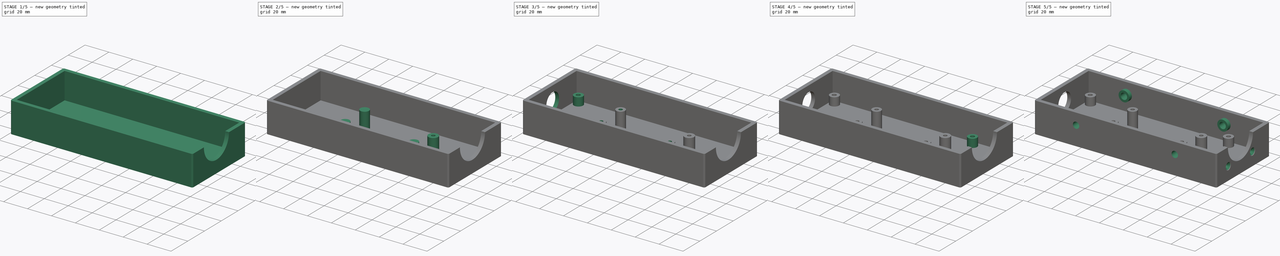
[diagram: build sequence overview — one tinted view per stage of 5, left to right]
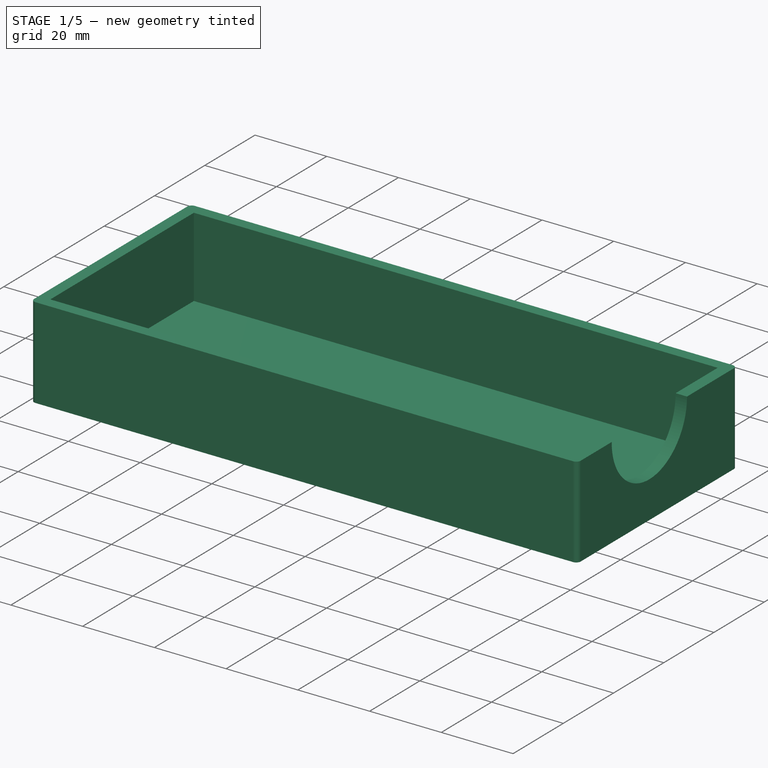
[diagram: stage 1 of 5 — iso view after this stage's code; geometry added in this stage tinted green]
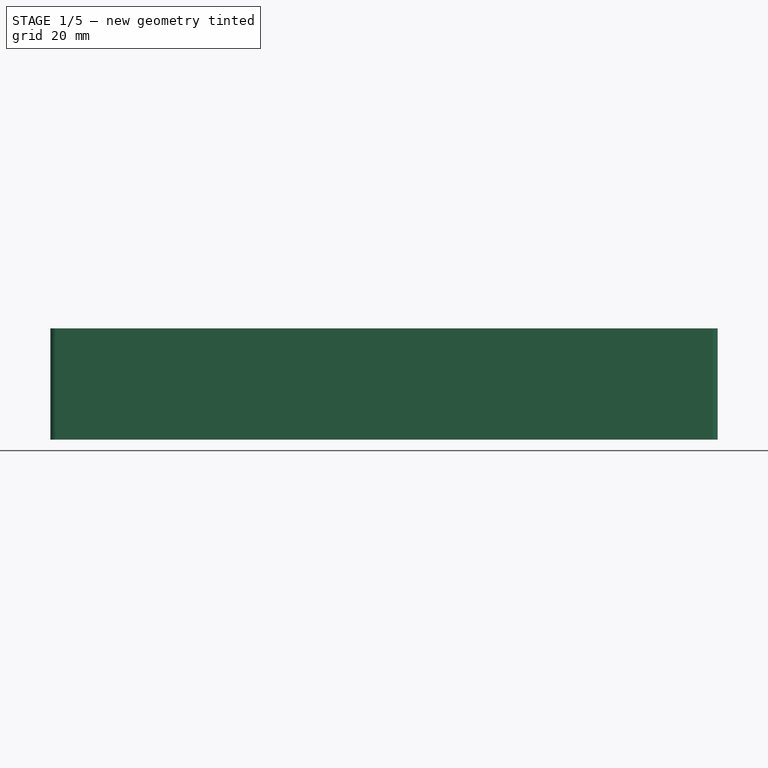
[diagram: stage 1 of 5 — front view after this stage's code; geometry added in this stage tinted green]
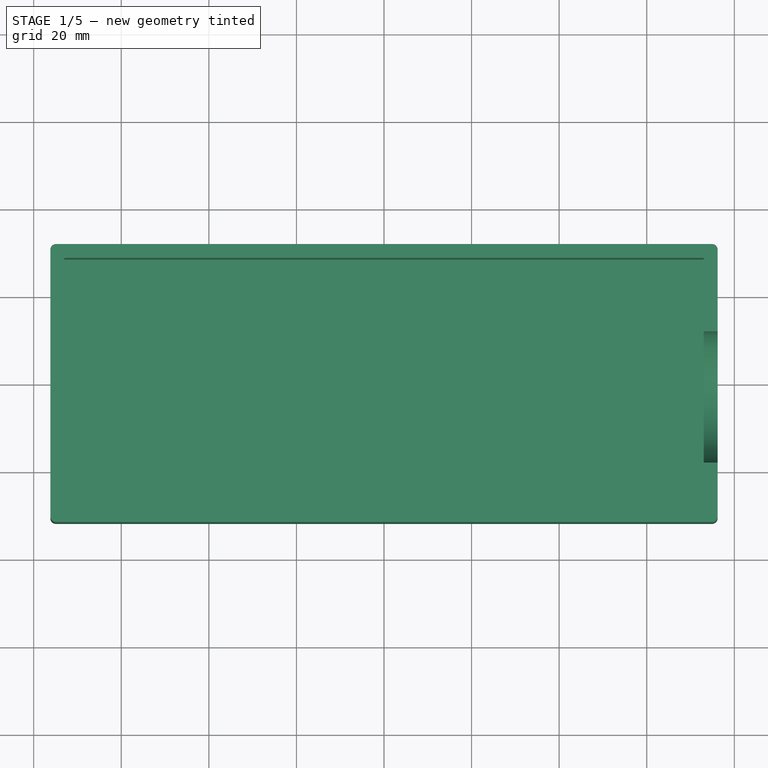
[diagram: stage 1 of 5 — top view after this stage's code; geometry added in this stage tinted green]
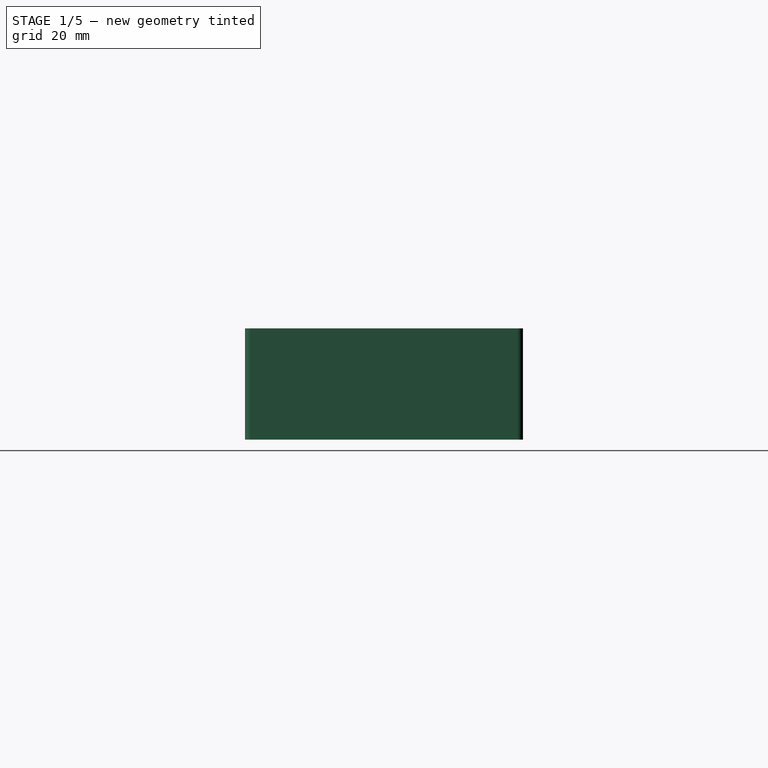
[diagram: stage 1 of 5 — right view after this stage's code; geometry added in this stage tinted green]
FCSTD DOCUMENT  (FreeCAD 1.0R39109 (Git))
Label: Riser Bottom2
License: All rights reserved
LicenseURL: https://en.wikipedia.org/wiki/All_rights_reserved
objects: Sketcher::SketchObject×17, PartDesign::Pad×7, PartDesign::Hole×7, PartDesign::Pocket×3, PartDesign::Fillet×1, PartDesign::Body×1
note: 89 computed .brp shape members not serialized (recipe doc carries the construction recipe); baked Part::Feature solids carry a one-line shape summary decoded from their .brp

FEATURE [Sketcher::SketchObject] Sketch
  ArcFitTolerance = 1e-06
  AttachmentSupport = -> [XY_Plane]
  FullyConstrained = true
  MakeInternals = false
  MapMode = 5
  sketch-geometry (4):
    g0: LineSegment StartX=-76.2 StartY=31.75 StartZ=0 EndX=-76.2 EndY=-31.75 EndZ=0
    g1: LineSegment StartX=-76.2 StartY=-31.75 StartZ=0 EndX=76.2 EndY=-31.75 EndZ=0
    g2: LineSegment StartX=76.2 StartY=-31.75 StartZ=0 EndX=76.2 EndY=31.75 EndZ=0
    g3: LineSegment StartX=76.2 StartY=31.75 StartZ=0 EndX=-76.2 EndY=31.75 EndZ=0
  constraints (11):
    c: Coincident(g0,g1)
    c: Coincident(g1,g2)
    c: Coincident(g2,g3)
    c: Coincident(g3,g0)
    c: Vertical(g0)
    c: Vertical(g2)
    c: Horizontal(g1)
    c: Horizontal(g3)
    c: Distance(g3,g3) = 152.4
    c: Distance(g0,g0) = 63.5
    c: Symmetric(g2,g0,g-1)
FEATURE [PartDesign::Pad] Pad
  Direction = (0,0,1)
  Length = 25.4
  Length2 = 10
  Profile = -> Sketch
  ReferenceAxis = -> Sketch [N_Axis]
  Refine = true
  Suppressed = false
  Type = 0
FEATURE [PartDesign::Fillet] Fillet
  Base = -> Pad [Edge5,Edge8,Edge1,Edge2]
  BaseFeature = -> Pad
  Radius = 1.27
  Refine = true
  SupportTransform = false
  Suppressed = false
  UseAllEdges = false
FEATURE [Sketcher::SketchObject] Sketch001
  ArcFitTolerance = 1e-06
  AttachmentSupport = -> [Fillet]
  FullyConstrained = true
  MakeInternals = false
  MapMode = 5
  Placement = pos=(0,0,25.4) rot=(0,0,1;0rad)
  sketch-geometry (4):
    g0: LineSegment StartX=-73.025 StartY=28.575 StartZ=0 EndX=-73.025 EndY=-28.575 EndZ=0
    g1: LineSegment StartX=-73.025 StartY=-28.575 StartZ=0 EndX=73.025 EndY=-28.575 EndZ=0
    g2: LineSegment StartX=73.025 StartY=-28.575 StartZ=0 EndX=73.025 EndY=28.575 EndZ=0
    g3: LineSegment StartX=73.025 StartY=28.575 StartZ=0 EndX=-73.025 EndY=28.575 EndZ=0
  constraints (11):
    c: Coincident(g0,g1)
    c: Coincident(g1,g2)
    c: Coincident(g2,g3)
    c: Coincident(g3,g0)
    c: Vertical(g0)
    c: Vertical(g2)
    c: Horizontal(g1)
    c: Horizontal(g3)
    c: Symmetric(g2,g0,g-1)
    c: Distance(g3,g3) = 146.05
    c: Distance(g0,g0) = 57.15
FEATURE [PartDesign::Pocket] Pocket
  BaseFeature = -> Fillet
  Direction = (0,0,-1)
  Length = 22.225
  Length2 = 5
  Profile = -> Sketch001
  ReferenceAxis = -> Sketch001 [N_Axis]
  Refine = true
  Suppressed = false
  Type = 0
FEATURE [Sketcher::SketchObject] Sketch002
  ArcFitTolerance = 1e-06
  AttachmentSupport = -> [Pocket]
  FullyConstrained = true
  MakeInternals = false
  MapMode = 5
  Placement = pos=(76.2,0,0) rot=(0.57735,0.57735,0.57735;2.0944rad)
  sketch-geometry (1):
    g0: Circle CenterX=-3.175 CenterY=25.273 CenterZ=0 NormalX=0 NormalY=0 NormalZ=1 AngleXU=0 Radius=14.986
  constraints (3):
    c: Diameter(g0) = 29.972
    c: DistanceY(g-1,g0) = 25.273
    c: DistanceX(g0,g-1) = 3.175
FEATURE [PartDesign::Pocket] Pocket001
  BaseFeature = -> Pocket
  Direction = (-1,0,0)
  Length = 12.7
  Length2 = 5
  Profile = -> Sketch002
  ReferenceAxis = -> Sketch002 [N_Axis]
  Refine = true
  Suppressed = false
  Type = 0
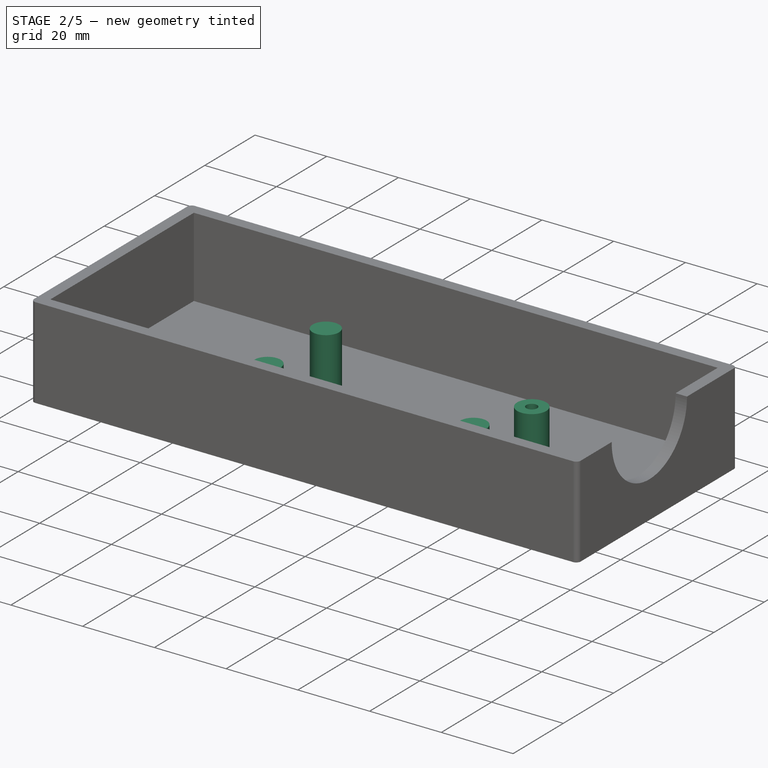
[diagram: stage 2 of 5 — iso view after this stage's code; geometry added in this stage tinted green]
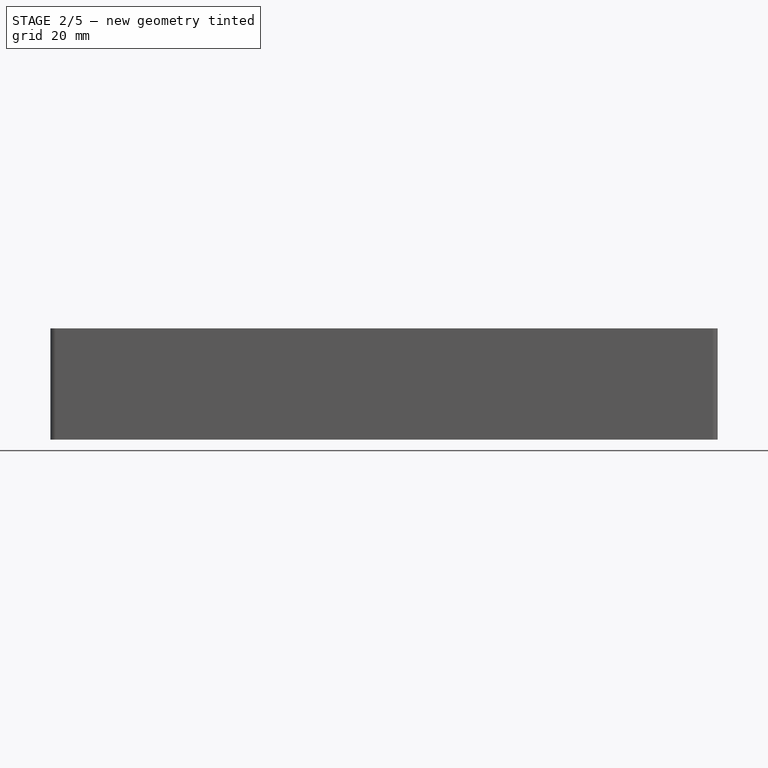
[diagram: stage 2 of 5 — front view after this stage's code; geometry added in this stage tinted green]
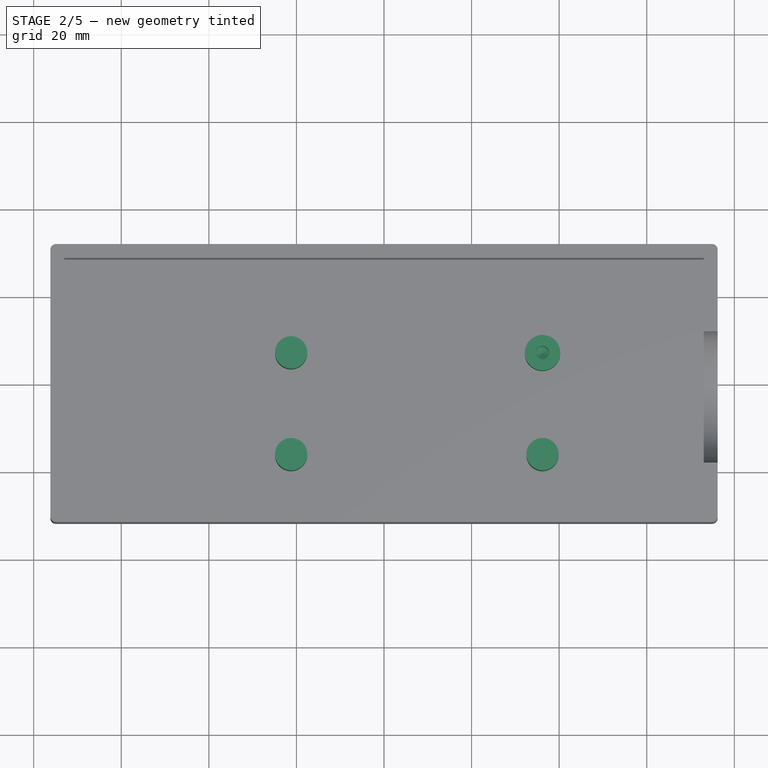
[diagram: stage 2 of 5 — top view after this stage's code; geometry added in this stage tinted green]
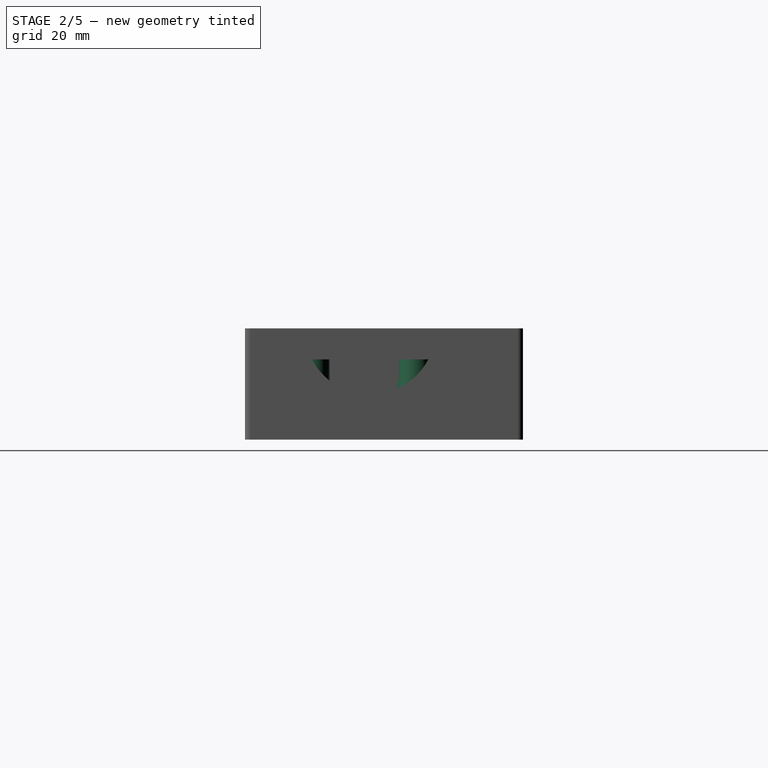
[diagram: stage 2 of 5 — right view after this stage's code; geometry added in this stage tinted green]
FEATURE [Sketcher::SketchObject] Sketch010
  ArcFitTolerance = 1e-06
  FullyConstrained = true
  MakeInternals = false
  MapMode = 5
  Placement = pos=(0,0,3.175) rot=(0,0,1;0rad)
  sketch-geometry (3):
    g0: Circle CenterX=-21.209 CenterY=-16.1036 CenterZ=0 NormalX=0 NormalY=0 NormalZ=1 AngleXU=0 Radius=3.683
    g1: Circle CenterX=36.195 CenterY=-16.1036 CenterZ=0 NormalX=0 NormalY=0 NormalZ=1 AngleXU=0 Radius=3.683
    g2: Circle CenterX=-21.209 CenterY=7.1374 CenterZ=0 NormalX=0 NormalY=0 NormalZ=1 AngleXU=0 Radius=3.683
  constraints (9):
    c: Diameter(g2) = 7.366
    c: Diameter(g0) = 7.366
    c: Diameter(g1) = 7.366
    c: DistanceY(g0,g2) = 23.241
    c: DistanceY(g-1,g2) = 7.1374
    c: DistanceX(g2,g0) = 0
    c: DistanceX(g0,g1) = 57.404
    c: DistanceX(g1,g-3) = 33.655
    c: DistanceY(g0,g1) = 0
FEATURE [PartDesign::Pad] Pad002
  BaseFeature = -> Pocket001
  Direction = (0,0,1)
  Length = 15.1384
  Length2 = 10
  Profile = -> Sketch010
  ReferenceAxis = -> Sketch010 [N_Axis]
  Refine = true
  Suppressed = false
  Type = 0
FEATURE [Sketcher::SketchObject] Sketch011
  ArcFitTolerance = 1e-06
  AttachmentSupport = -> [Pad002]
  ExternalGeometry = -> [Pad002]
  FullyConstrained = false
  MakeInternals = false
  MapMode = 5
  Placement = pos=(0,0,3.175) rot=(0,0,1;0rad)
  sketch-geometry (1):
    g0: Circle CenterX=36.195 CenterY=7.1374 CenterZ=0 NormalX=0 NormalY=0 NormalZ=1 AngleXU=0 Radius=4.05237
  constraints (2):
    c: DistanceY(g-1,g0) = 7.1374
    c: DistanceX(g0,g-4) = 40.005
FEATURE [PartDesign::Pad] Pad003
  BaseFeature = -> Pad002
  Direction = (0,0,1)
  Length = 10.7696
  Length2 = 10
  Profile = -> Sketch011
  ReferenceAxis = -> Sketch011 [N_Axis]
  Refine = true
  Suppressed = false
  Type = 0
FEATURE [Sketcher::SketchObject] Sketch012
  ArcFitTolerance = 1e-06
  AttachmentSupport = -> [Pad003]
  ExternalGeometry = -> [Pad003]
  FullyConstrained = true
  MakeInternals = false
  MapMode = 5
  Placement = pos=(0,0,13.9446) rot=(0,0,1;0rad)
  sketch-geometry (1):
    g0: Circle CenterX=36.195 CenterY=7.1374 CenterZ=0 NormalX=0 NormalY=0 NormalZ=1 AngleXU=0 Radius=1.524
  constraints (3):
    c: Diameter(g0) = 3.048
    c: DistanceX(g0,g-3) = 0
    c: DistanceY(g-3,g0) = 0
FEATURE [PartDesign::Hole] Hole
  BaseFeature = -> Pad003
  CustomThreadClearance = 0
  Depth = 8.382
  DepthType = 0
  Diameter = 3.048
  DrillForDepth = false
  DrillPoint = 1
  DrillPointAngle = 118
  HoleCutCountersinkAngle = 90
  HoleCutCustomValues = false
  HoleCutDepth = 0
  HoleCutDiameter = 0
  HoleCutType = 0
  ModelThread = false
  Profile = -> Sketch012
  Refine = true
  Suppressed = false
  Tapered = false
  TaperedAngle = 90
  ThreadClass = 0
  ThreadDepth = 8.382
  ThreadDepthType = 0
  ThreadDirection = 0
  ThreadFit = 0
  ThreadSize = 0
  ThreadType = 0
  Threaded = false
  UseCustomThreadClearance = false
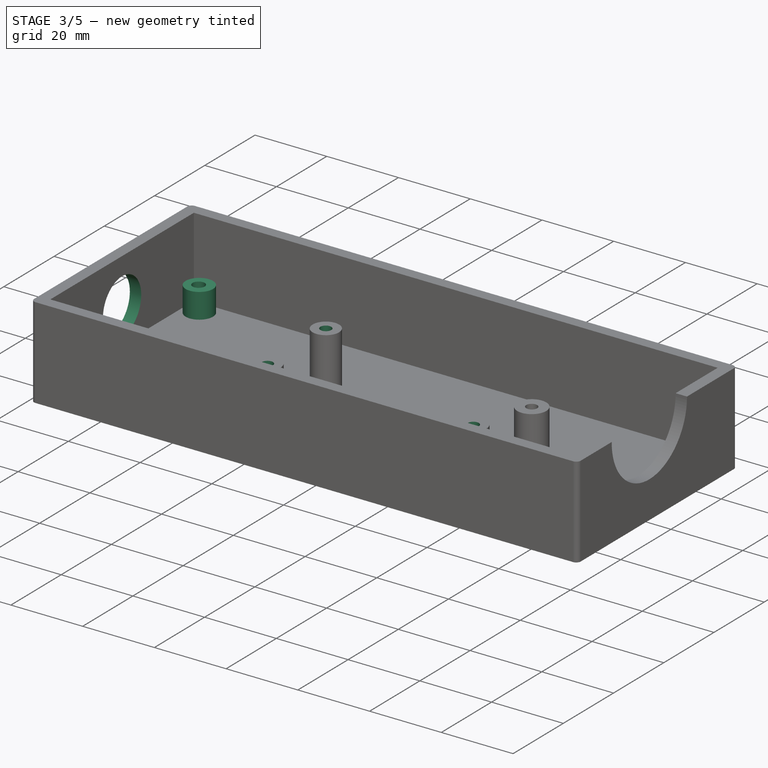
[diagram: stage 3 of 5 — iso view after this stage's code; geometry added in this stage tinted green]
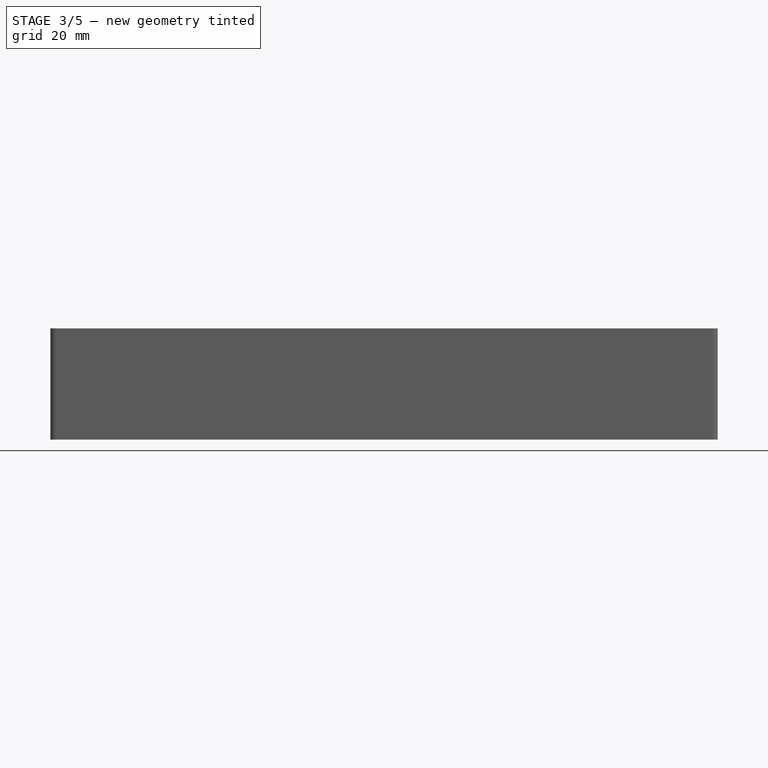
[diagram: stage 3 of 5 — front view after this stage's code; geometry added in this stage tinted green]
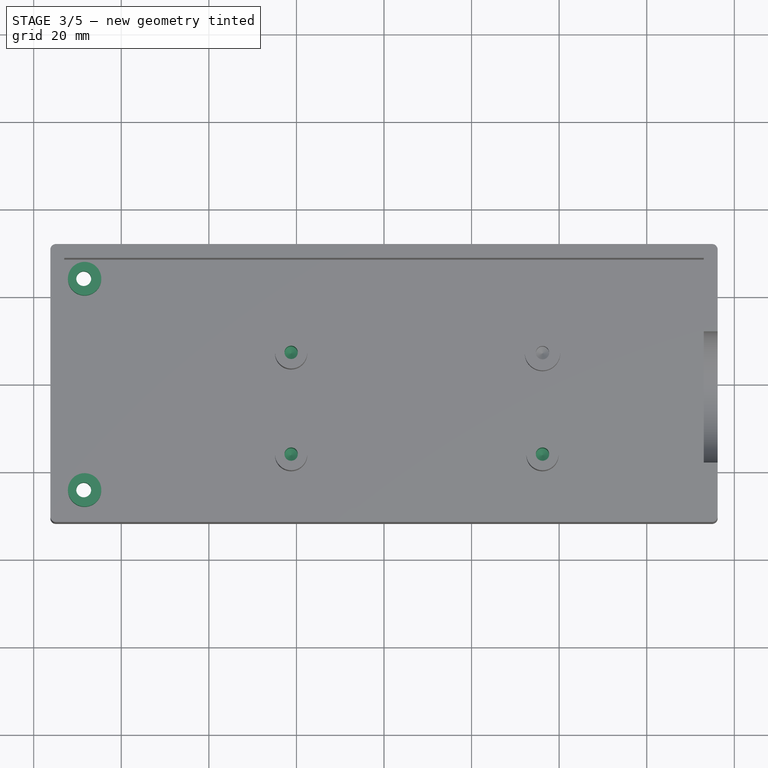
[diagram: stage 3 of 5 — top view after this stage's code; geometry added in this stage tinted green]
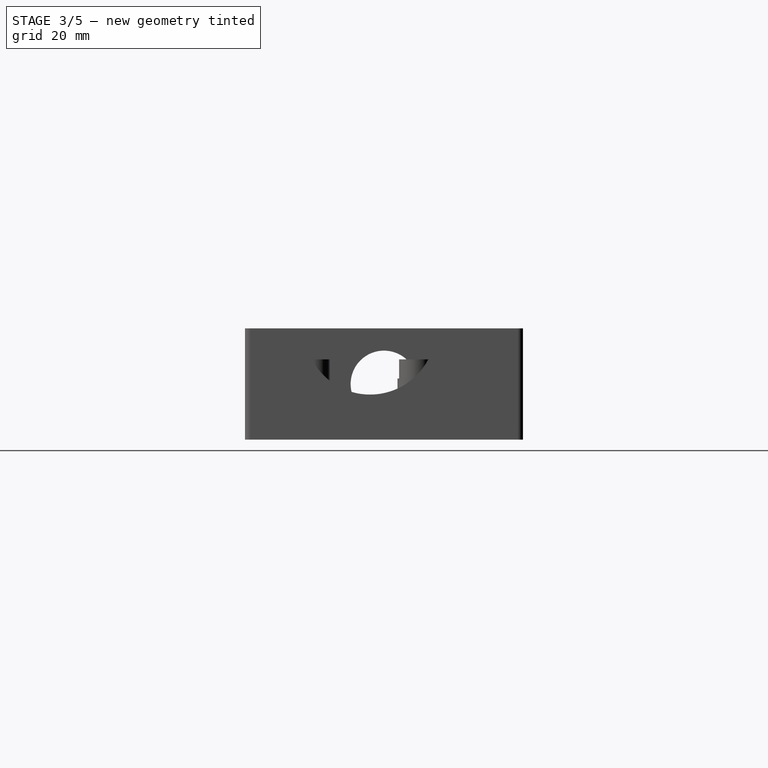
[diagram: stage 3 of 5 — right view after this stage's code; geometry added in this stage tinted green]
FEATURE [Sketcher::SketchObject] Sketch013
  ArcFitTolerance = 1e-06
  AttachmentSupport = -> [Hole]
  ExternalGeometry = -> [Hole]
  FullyConstrained = true
  MakeInternals = false
  MapMode = 5
  Placement = pos=(0,0,18.3134) rot=(0,0,1;0rad)
  sketch-geometry (3):
    g0: Circle CenterX=-21.209 CenterY=7.1374 CenterZ=0 NormalX=0 NormalY=0 NormalZ=1 AngleXU=0 Radius=1.524
    g1: Circle CenterX=36.195 CenterY=-16.1036 CenterZ=0 NormalX=0 NormalY=0 NormalZ=1 AngleXU=0 Radius=1.524
    g2: Circle CenterX=-21.209 CenterY=-16.1036 CenterZ=0 NormalX=0 NormalY=0 NormalZ=1 AngleXU=0 Radius=1.524
  constraints (9):
    c: DistanceX(g0,g-5) = 0
    c: DistanceX(g2,g-4) = 0
    c: DistanceX(g1,g-3) = 0
    c: Diameter(g0) = 3.048
    c: Diameter(g1) = 3.048
    c: Diameter(g2) = 3.048
    c: DistanceY(g-5,g0) = 0
    c: DistanceY(g-4,g2) = 0
    c: DistanceY(g-3,g1) = 0
FEATURE [PartDesign::Hole] Hole004
  BaseFeature = -> Hole
  CustomThreadClearance = 0
  Depth = 12.7
  DepthType = 0
  Diameter = 3.048
  DrillForDepth = false
  DrillPoint = 1
  DrillPointAngle = 118
  HoleCutCountersinkAngle = 90
  HoleCutCustomValues = false
  HoleCutDepth = 0
  HoleCutDiameter = 0
  HoleCutType = 0
  ModelThread = false
  Profile = -> Sketch013
  Refine = true
  Suppressed = false
  Tapered = false
  TaperedAngle = 90
  ThreadClass = 0
  ThreadDepth = 12.7
  ThreadDepthType = 0
  ThreadDirection = 0
  ThreadFit = 0
  ThreadSize = 0
  ThreadType = 0
  Threaded = false
  UseCustomThreadClearance = false
FEATURE [Sketcher::SketchObject] Sketch014
  ArcFitTolerance = 1e-06
  AttachmentSupport = -> [Hole004]
  FullyConstrained = true
  MakeInternals = false
  MapMode = 5
  Placement = pos=(0,0,3.175) rot=(0,0,1;0rad)
  sketch-geometry (2):
    g0: Circle CenterX=-68.3768 CenterY=24.13 CenterZ=0 NormalX=0 NormalY=0 NormalZ=1 AngleXU=0 Radius=3.81
    g1: Circle CenterX=-68.3768 CenterY=-24.13 CenterZ=0 NormalX=0 NormalY=0 NormalZ=1 AngleXU=0 Radius=3.81
  constraints (6):
    c: Diameter(g1) = 7.62
    c: Diameter(g0) = 7.62
    c: DistanceX(g0,g-4) = 5.5118
    c: DistanceY(g-4,g0) = 0
    c: DistanceX(g1,g-3) = 5.5118
    c: DistanceY(g-3,g1) = 0
FEATURE [PartDesign::Pad] Pad004
  BaseFeature = -> Hole004
  Direction = (0,0,1)
  Length = 6.985
  Length2 = 10
  Profile = -> Sketch014
  ReferenceAxis = -> Sketch014 [N_Axis]
  Refine = true
  Suppressed = false
  Type = 0
FEATURE [Sketcher::SketchObject] Sketch015
  ArcFitTolerance = 1e-06
  AttachmentSupport = -> [Pad004]
  ExternalGeometry = -> [Pad004]
  FullyConstrained = true
  MakeInternals = false
  MapMode = 5
  Placement = pos=(0,0,0) rot=(1,0,0;3.14159rad)
  sketch-geometry (2):
    g0: Circle CenterX=-68.58 CenterY=24.13 CenterZ=0 NormalX=0 NormalY=0 NormalZ=1 AngleXU=0 Radius=1.4986
    g1: Circle CenterX=-68.58 CenterY=-24.13 CenterZ=0 NormalX=0 NormalY=0 NormalZ=1 AngleXU=0 Radius=1.4986
  constraints (6):
    c: Diameter(g0) = 2.9972
    c: Diameter(g1) = 2.9972
    c: DistanceX(g-3,g1) = 7.62
    c: DistanceX(g-3,g0) = 7.62
    c: DistanceY(g0,g-4) = 7.62
    c: DistanceY(g-5,g1) = 7.62
FEATURE [PartDesign::Hole] Hole005
  BaseFeature = -> Pad004
  CustomThreadClearance = 0
  Depth = 75.7936
  DepthType = 0
  Diameter = 3.4
  DrillForDepth = false
  DrillPoint = 1
  DrillPointAngle = 118
  HoleCutCountersinkAngle = 90
  HoleCutCustomValues = false
  HoleCutDepth = 0
  HoleCutDiameter = 6.7056
  HoleCutType = 2
  ModelThread = false
  Profile = -> Sketch015
  Refine = true
  Suppressed = false
  Tapered = false
  TaperedAngle = 90
  ThreadClass = 0
  ThreadDepth = 75.7936
  ThreadDepthType = 0
  ThreadDirection = 0
  ThreadFit = 0
  ThreadSize = 9
  ThreadType = 1
  Threaded = false
  UseCustomThreadClearance = false
FEATURE [Sketcher::SketchObject] Sketch016
  ArcFitTolerance = 1e-06
  AttachmentSupport = -> [Hole005]
  ExternalGeometry = -> [Hole005]
  FullyConstrained = true
  MakeInternals = false
  MapMode = 5
  Placement = pos=(-76.2,0,0) rot=(0.57735,-0.57735,-0.57735;2.0944rad)
  sketch-geometry (1):
    g0: Circle CenterX=0 CenterY=12.7 CenterZ=0 NormalX=0 NormalY=0 NormalZ=1 AngleXU=0 Radius=7.62
  constraints (3):
    c: Diameter(g0) = 15.24
    c: DistanceX(g0,g-1) = 0
    c: DistanceY(g-1,g0) = 12.7
FEATURE [PartDesign::Pocket] Pocket002
  BaseFeature = -> Hole005
  Direction = (1,0,0)
  Length = 5.0038
  Length2 = 5
  Profile = -> Sketch016
  ReferenceAxis = -> Sketch016 [N_Axis]
  Refine = true
  Suppressed = false
  Type = 0
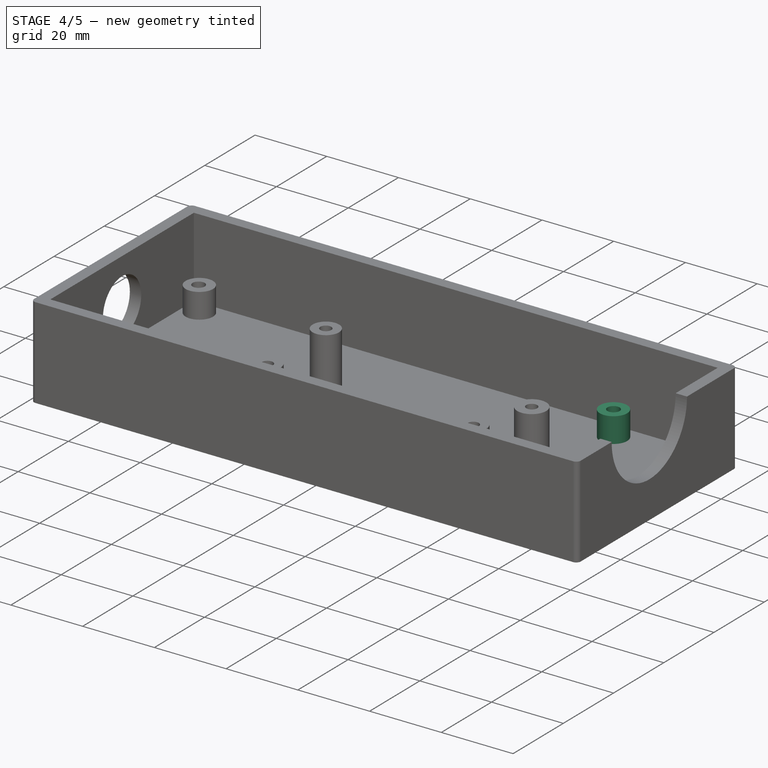
[diagram: stage 4 of 5 — iso view after this stage's code; geometry added in this stage tinted green]
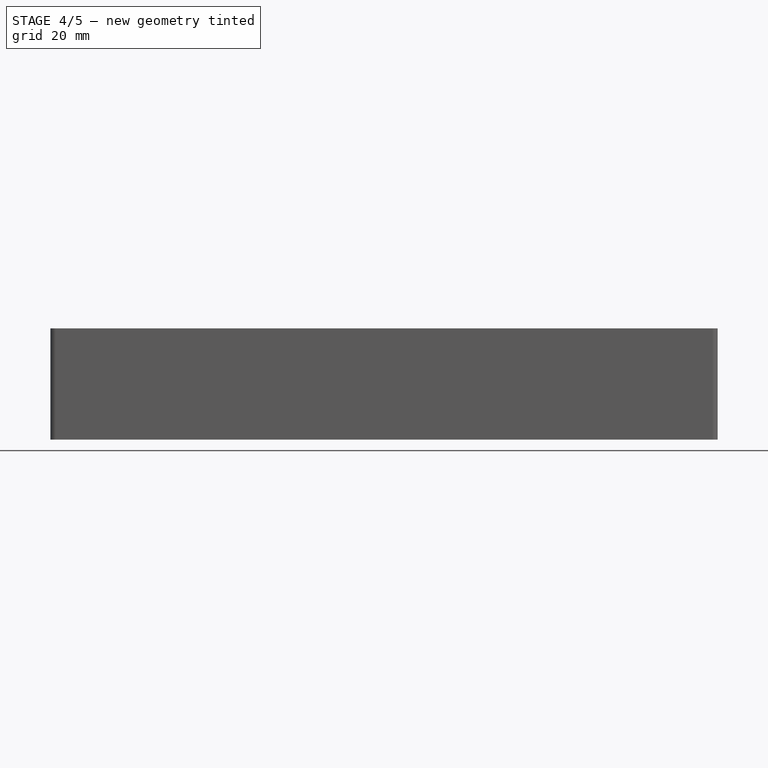
[diagram: stage 4 of 5 — front view after this stage's code; geometry added in this stage tinted green]
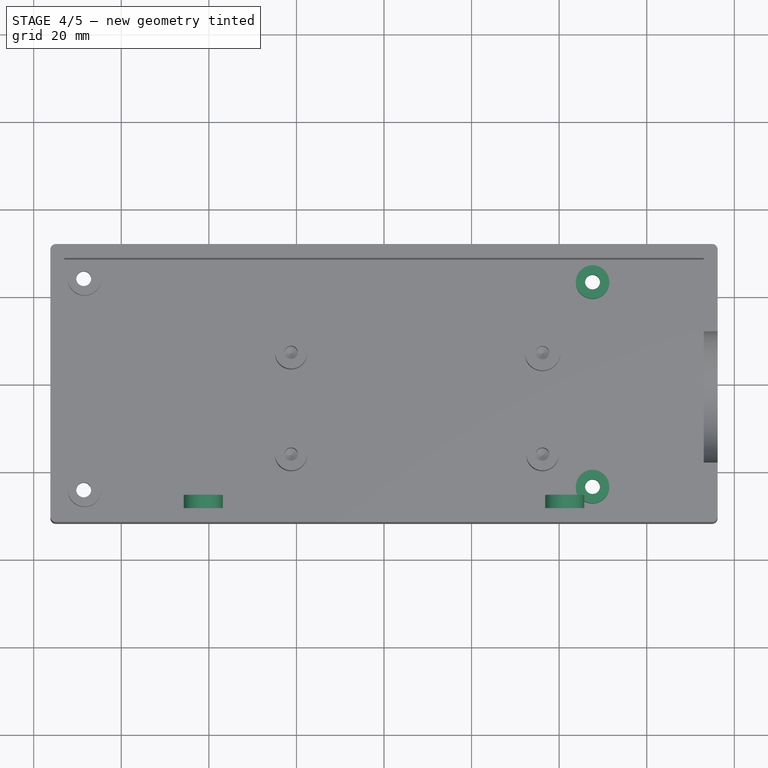
[diagram: stage 4 of 5 — top view after this stage's code; geometry added in this stage tinted green]
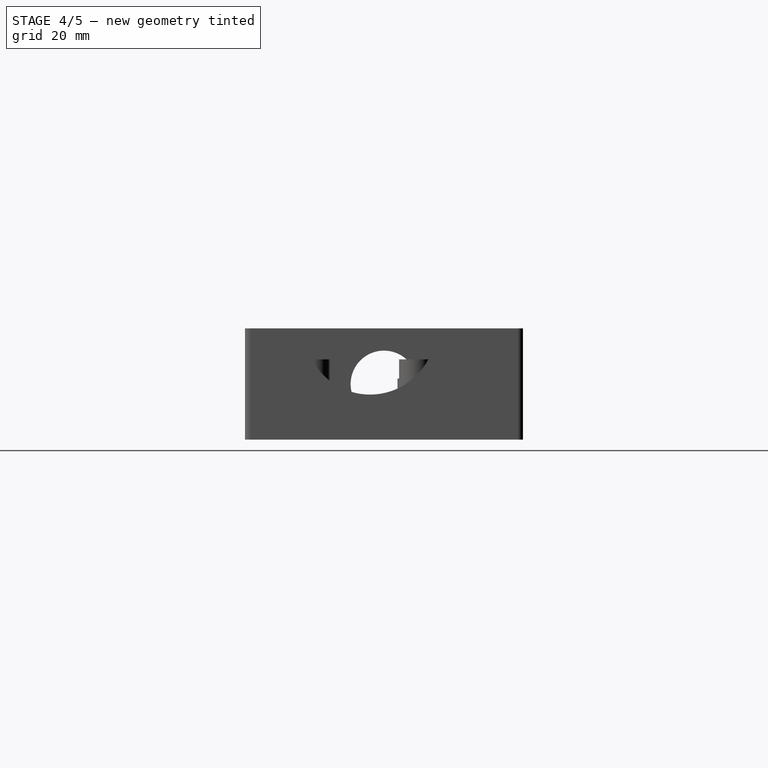
[diagram: stage 4 of 5 — right view after this stage's code; geometry added in this stage tinted green]
FEATURE [Sketcher::SketchObject] Sketch017
  ArcFitTolerance = 1e-06
  AttachmentSupport = -> [Pocket002]
  ExternalGeometry = -> [Pocket002]
  FullyConstrained = true
  MakeInternals = false
  MapMode = 5
  Placement = pos=(0,0,3.175) rot=(0,0,1;0rad)
  sketch-geometry (2):
    g0: Circle CenterX=47.625 CenterY=-23.368 CenterZ=0 NormalX=0 NormalY=0 NormalZ=1 AngleXU=0 Radius=3.81
    g1: Circle CenterX=47.625 CenterY=23.368 CenterZ=0 NormalX=0 NormalY=0 NormalZ=1 AngleXU=0 Radius=3.81
  constraints (6):
    c: Diameter(g1) = 7.62
    c: Diameter(g0) = 7.62
    c: DistanceX(g1,g-3) = 28.575
    c: DistanceX(g0,g-4) = 28.575
    c: DistanceY(g-4,g0) = 8.382
    c: DistanceY(g1,g-5) = 8.382
FEATURE [PartDesign::Pad] Pad005
  BaseFeature = -> Pocket002
  Direction = (0,0,1)
  Length = 6.985
  Length2 = 10
  Profile = -> Sketch017
  ReferenceAxis = -> Sketch017 [N_Axis]
  Refine = true
  Suppressed = false
  Type = 0
FEATURE [Sketcher::SketchObject] Sketch018
  ArcFitTolerance = 1e-06
  AttachmentSupport = -> [Pad005]
  ExternalGeometry = -> [Pad005]
  FullyConstrained = true
  MakeInternals = false
  MapMode = 5
  Placement = pos=(0,0,0) rot=(1,0,0;3.14159rad)
  sketch-geometry (2):
    g0: Circle CenterX=47.625 CenterY=23.368 CenterZ=0 NormalX=0 NormalY=0 NormalZ=1 AngleXU=0 Radius=1.8669
    g1: Circle CenterX=47.625 CenterY=-23.368 CenterZ=0 NormalX=0 NormalY=0 NormalZ=1 AngleXU=0 Radius=1.8669
  constraints (6):
    c: Diameter(g0) = 3.7338
    c: Diameter(g1) = 3.7338
    c: DistanceX(g0,g-3) = 28.575
    c: DistanceX(g1,g-3) = 28.575
    c: DistanceY(g-4,g1) = 8.382
    c: DistanceY(g0,g-5) = 8.382
FEATURE [PartDesign::Hole] Hole006
  BaseFeature = -> Pad005
  CustomThreadClearance = 0
  Depth = 24.9936
  DepthType = 0
  Diameter = 3.4
  DrillForDepth = false
  DrillPoint = 1
  DrillPointAngle = 118
  HoleCutCountersinkAngle = 90
  HoleCutCustomValues = false
  HoleCutDepth = 0
  HoleCutDiameter = 6.7
  HoleCutType = 2
  ModelThread = false
  Profile = -> Sketch018
  Refine = true
  Suppressed = false
  Tapered = false
  TaperedAngle = 90
  ThreadClass = 0
  ThreadDepth = 24.9936
  ThreadDepthType = 0
  ThreadDirection = 0
  ThreadFit = 0
  ThreadSize = 9
  ThreadType = 1
  Threaded = false
  UseCustomThreadClearance = false
FEATURE [Sketcher::SketchObject] Sketch019
  ArcFitTolerance = 1e-06
  AttachmentSupport = -> [Hole006]
  ExternalGeometry = -> [Hole006]
  FullyConstrained = true
  MakeInternals = false
  MapMode = 5
  Placement = pos=(0,-28.575,0) rot=(0,0.707107,0.707107;3.14159rad)
  sketch-geometry (2):
    g0: Circle CenterX=-41.275 CenterY=15.875 CenterZ=0 NormalX=0 NormalY=0 NormalZ=1 AngleXU=0 Radius=4.445
    g1: Circle CenterX=41.275 CenterY=15.875 CenterZ=0 NormalX=0 NormalY=0 NormalZ=1 AngleXU=0 Radius=4.445
  constraints (7):
    c: Diameter(g0) = 8.89
    c: Diameter(g1) = 8.89
    c: DistanceX(g0,g1) = 82.55
    c: DistanceY(g1,g0) = 0
    c: DistanceY(g-3,g-3) = 0
    c: DistanceY(g0,g-3) = 9.525
    c: DistanceX(g-4,g0) = 31.75
FEATURE [PartDesign::Pad] Pad006
  BaseFeature = -> Hole006
  Direction = (0,1,-2e-16)
  Length = 3.175
  Length2 = 10
  Profile = -> Sketch019
  ReferenceAxis = -> Sketch019 [N_Axis]
  Refine = true
  Suppressed = false
  Type = 0
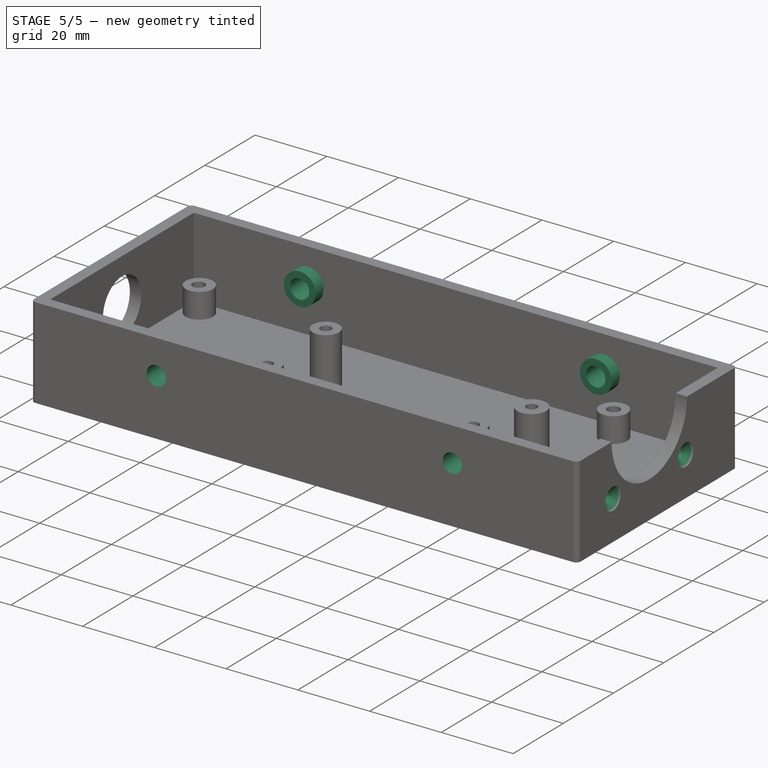
[diagram: stage 5 of 5 — iso view after this stage's code; geometry added in this stage tinted green]
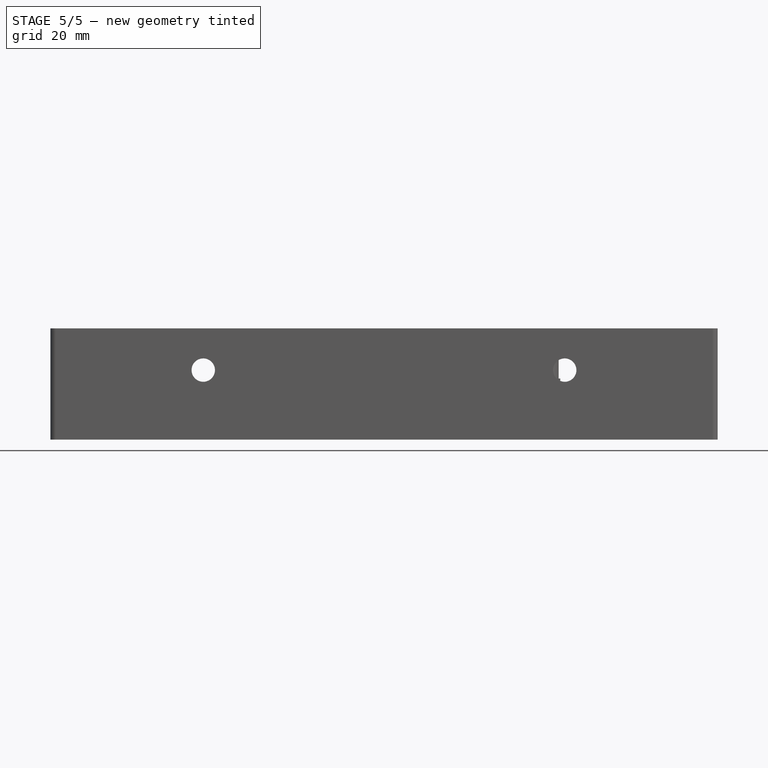
[diagram: stage 5 of 5 — front view after this stage's code; geometry added in this stage tinted green]
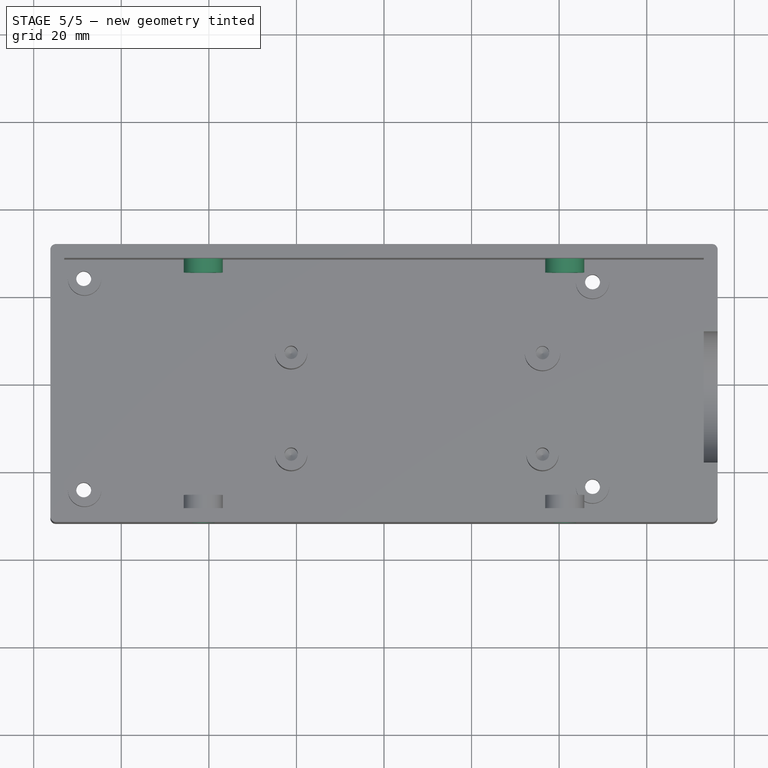
[diagram: stage 5 of 5 — top view after this stage's code; geometry added in this stage tinted green]
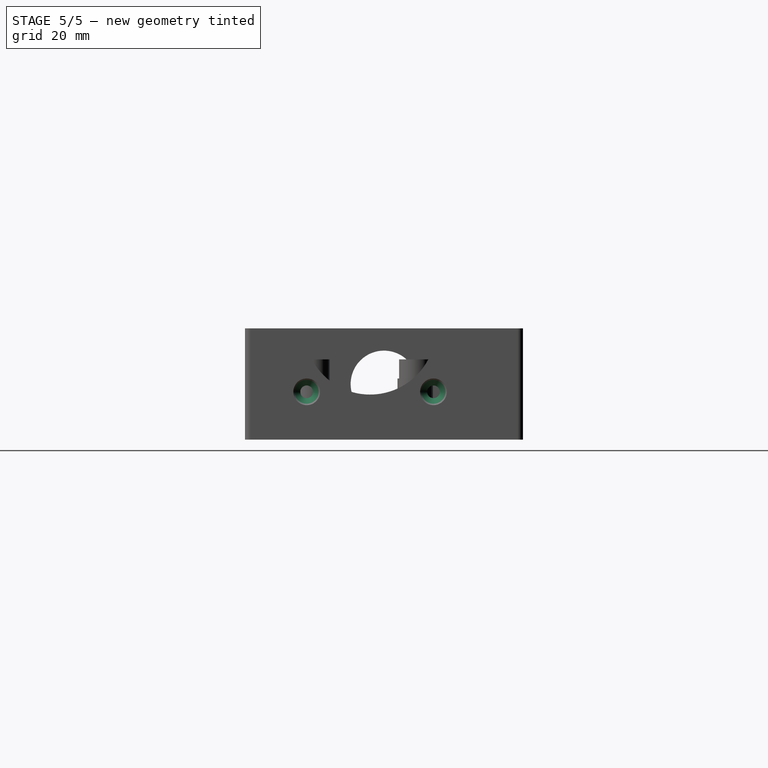
[diagram: stage 5 of 5 — right view after this stage's code; geometry added in this stage tinted green]
FEATURE [Sketcher::SketchObject] Sketch020
  ArcFitTolerance = 1e-06
  AttachmentSupport = -> [Pad006]
  ExternalGeometry = -> [Pad006]
  FullyConstrained = true
  MakeInternals = false
  MapMode = 5
  Placement = pos=(0,-31.75,0) rot=(1,0,0;1.5708rad)
  sketch-geometry (2):
    g0: Circle CenterX=-41.275 CenterY=15.875 CenterZ=0 NormalX=0 NormalY=0 NormalZ=1 AngleXU=0 Radius=1.4986
    g1: Circle CenterX=41.275 CenterY=15.875 CenterZ=0 NormalX=0 NormalY=0 NormalZ=1 AngleXU=0 Radius=1.4986
  constraints (6):
    c: Diameter(g0) = 2.9972
    c: Diameter(g1) = 2.9972
    c: DistanceX(g0,g1) = 82.55
    c: DistanceY(g1,g0) = 0
    c: DistanceY(g0,g-3) = 9.525
    c: DistanceX(g0,g-1) = 41.275
FEATURE [PartDesign::Hole] Hole007
  BaseFeature = -> Pad006
  CustomThreadClearance = 0
  Depth = 12.7
  DepthType = 0
  Diameter = 5.334
  DrillForDepth = false
  DrillPoint = 1
  DrillPointAngle = 118
  HoleCutCountersinkAngle = 90
  HoleCutCustomValues = false
  HoleCutDepth = 0
  HoleCutDiameter = 0
  HoleCutType = 0
  ModelThread = false
  Profile = -> Sketch020
  Refine = true
  Suppressed = false
  Tapered = false
  TaperedAngle = 90
  ThreadClass = 0
  ThreadDepth = 12.7
  ThreadDepthType = 0
  ThreadDirection = 0
  ThreadFit = 0
  ThreadSize = 0
  ThreadType = 0
  Threaded = false
  UseCustomThreadClearance = false
FEATURE [Sketcher::SketchObject] Sketch021
  ArcFitTolerance = 1e-06
  AttachmentSupport = -> [Hole007]
  ExternalGeometry = -> [Hole007]
  FullyConstrained = true
  MakeInternals = false
  MapMode = 5
  Placement = pos=(0,28.575,0) rot=(1,0,0;1.5708rad)
  sketch-geometry (2):
    g0: Circle CenterX=-41.275 CenterY=15.875 CenterZ=0 NormalX=0 NormalY=0 NormalZ=1 AngleXU=0 Radius=4.445
    g1: Circle CenterX=41.275 CenterY=15.875 CenterZ=0 NormalX=0 NormalY=0 NormalZ=1 AngleXU=0 Radius=4.445
  constraints (6):
    c: Diameter(g0) = 8.89
    c: Diameter(g1) = 8.89
    c: DistanceX(g0,g1) = 82.55
    c: DistanceY(g0,g-3) = 9.525
    c: DistanceY(g0,g1) = 0
    c: DistanceX(g-3,g0) = 31.75
FEATURE [PartDesign::Pad] Pad007
  BaseFeature = -> Hole007
  Direction = (0,-1,2e-16)
  Length = 3.175
  Length2 = 10
  Profile = -> Sketch021
  ReferenceAxis = -> Sketch021 [N_Axis]
  Refine = true
  Suppressed = false
  Type = 0
FEATURE [Sketcher::SketchObject] Sketch022
  ArcFitTolerance = 1e-06
  AttachmentSupport = -> [Pad007]
  ExternalGeometry = -> [Pad007]
  FullyConstrained = true
  MakeInternals = false
  MapMode = 5
  Placement = pos=(0,31.75,0) rot=(0,0.707107,0.707107;3.14159rad)
  sketch-geometry (2):
    g0: Circle CenterX=-41.275 CenterY=15.875 CenterZ=0 NormalX=0 NormalY=0 NormalZ=1 AngleXU=0 Radius=2.54
    g1: Circle CenterX=41.275 CenterY=15.875 CenterZ=0 NormalX=0 NormalY=0 NormalZ=1 AngleXU=0 Radius=2.54
  constraints (6):
    c: Diameter(g0) = 5.08
    c: Diameter(g1) = 5.08
    c: DistanceX(g0,g1) = 82.55
    c: DistanceX(g0,g-1) = 41.275
    c: DistanceY(g1,g-3) = 9.525
    c: DistanceY(g0,g1) = 0
FEATURE [PartDesign::Hole] Hole008
  BaseFeature = -> Pad007
  CustomThreadClearance = 0
  Depth = 12.7
  DepthType = 0
  Diameter = 5.334
  DrillForDepth = false
  DrillPoint = 1
  DrillPointAngle = 118
  HoleCutCountersinkAngle = 90
  HoleCutCustomValues = false
  HoleCutDepth = 0
  HoleCutDiameter = 6.096
  HoleCutType = 0
  ModelThread = false
  Profile = -> Sketch022
  Refine = true
  Suppressed = false
  Tapered = false
  TaperedAngle = 90
  ThreadClass = 0
  ThreadDepth = 12.7
  ThreadDepthType = 0
  ThreadDirection = 0
  ThreadFit = 0
  ThreadSize = 0
  ThreadType = 0
  Threaded = false
  UseCustomThreadClearance = false
FEATURE [Sketcher::SketchObject] Sketch023
  ArcFitTolerance = 1e-06
  AttachmentSupport = -> [Hole008]
  ExternalGeometry = -> [Hole008]
  FullyConstrained = true
  MakeInternals = false
  MapMode = 5
  Placement = pos=(76.2,0,0) rot=(0.57735,0.57735,0.57735;2.0944rad)
  sketch-geometry (2):
    g0: Circle CenterX=-17.653 CenterY=10.922 CenterZ=0 NormalX=0 NormalY=0 NormalZ=1 AngleXU=0 Radius=1.4478
    g1: Circle CenterX=11.303 CenterY=10.922 CenterZ=0 NormalX=0 NormalY=0 NormalZ=1 AngleXU=0 Radius=1.4478
  constraints (6):
    c: Diameter(g0) = 2.8956
    c: Diameter(g1) = 2.8956
    c: DistanceY(g1,g0) = 0
    c: DistanceY(g1,g-3) = 14.478
    c: DistanceX(g0,g-4) = 14.478
    c: DistanceX(g0,g1) = 28.956
FEATURE [PartDesign::Hole] Hole009
  BaseFeature = -> Hole008
  CustomThreadClearance = 0
  Depth = 24.9936
  DepthType = 0
  Diameter = 2.9
  DrillForDepth = false
  DrillPoint = 1
  DrillPointAngle = 118
  HoleCutCountersinkAngle = 90
  HoleCutCustomValues = false
  HoleCutDepth = 0
  HoleCutDiameter = 6.1
  HoleCutType = 2
  ModelThread = false
  Profile = -> Sketch023
  Refine = true
  Suppressed = false
  Tapered = false
  TaperedAngle = 90
  ThreadClass = 0
  ThreadDepth = 24.9936
  ThreadDepthType = 0
  ThreadDirection = 0
  ThreadFit = 0
  ThreadSize = 8
  ThreadType = 1
  Threaded = false
  UseCustomThreadClearance = false
FEATURE [PartDesign::Body] Body
  AllowCompound = false
  Group = -> [Sketch,Pad,Fillet,Sketch001,Pocket,Sketch002,Pocket001,Sketch010,Pad002,Sketch011,Pad003,Sketch012,Hole,Sketch013,Hole004,Sketch014,Pad004,Sketch015,Hole005,Sketch016,Pocket002,Sketch017,Pad005,Sketch018,Hole006,Sketch019,Pad006,Sketch020,Hole007,Sketch021,Pad007,Sketch022,Hole008,Sketch023,Hole009]
  Origin = -> Origin
  Tip = -> Hole009
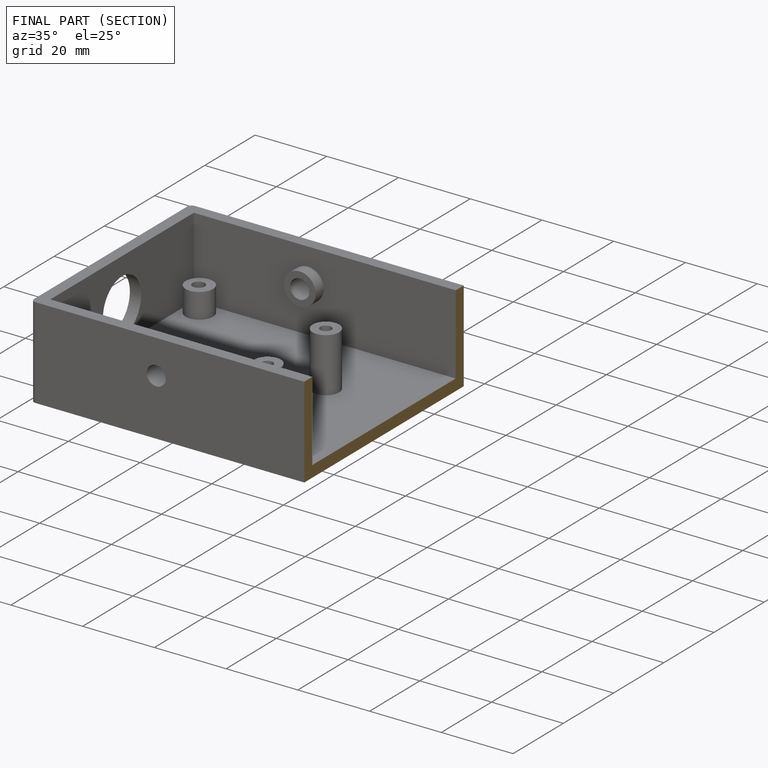
[diagram: finished part — half-section view (interior)]
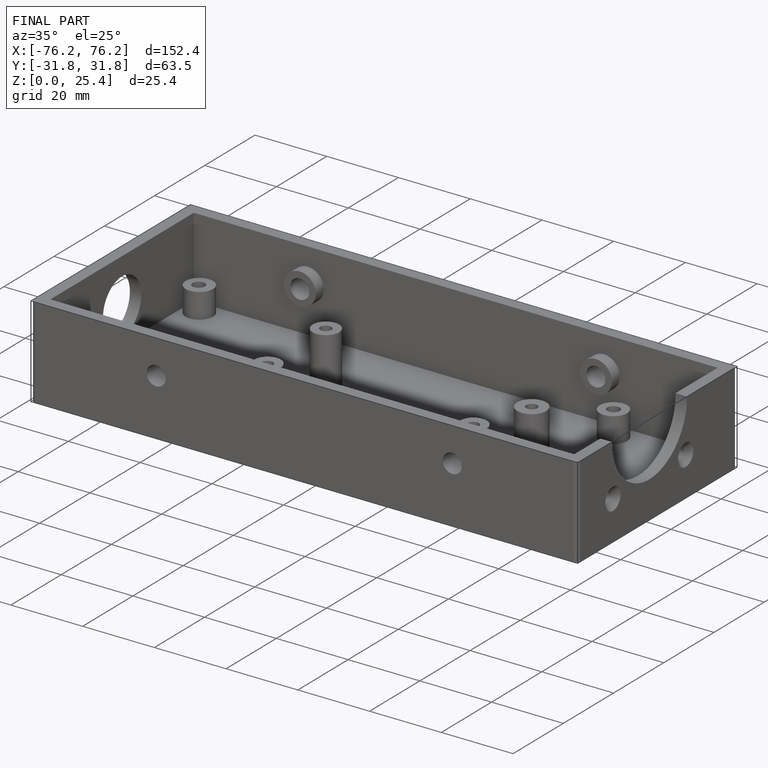
[diagram: finished part — iso view with bounding-box wireframe]
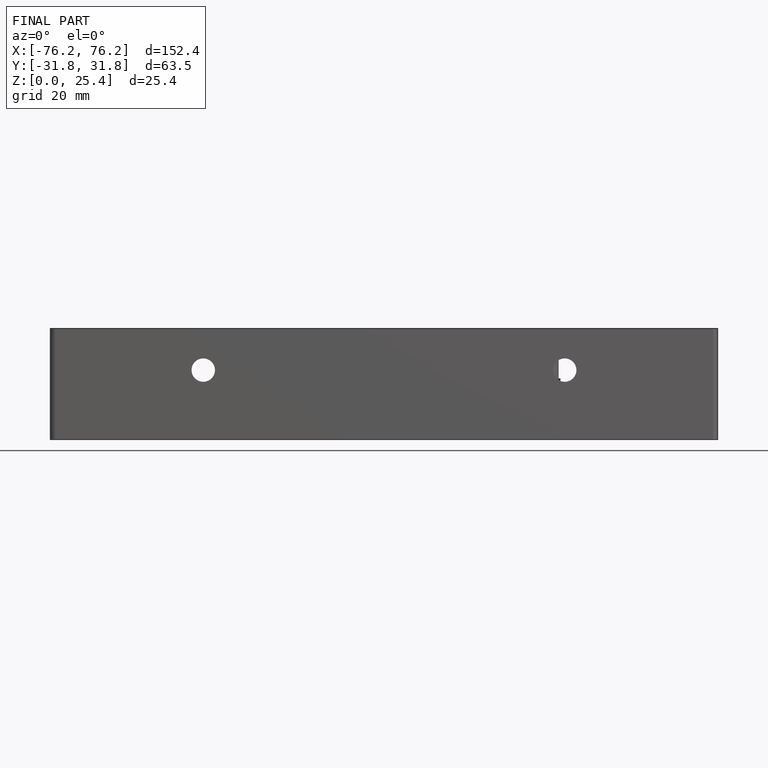
[diagram: finished part — front view with bounding-box wireframe]
